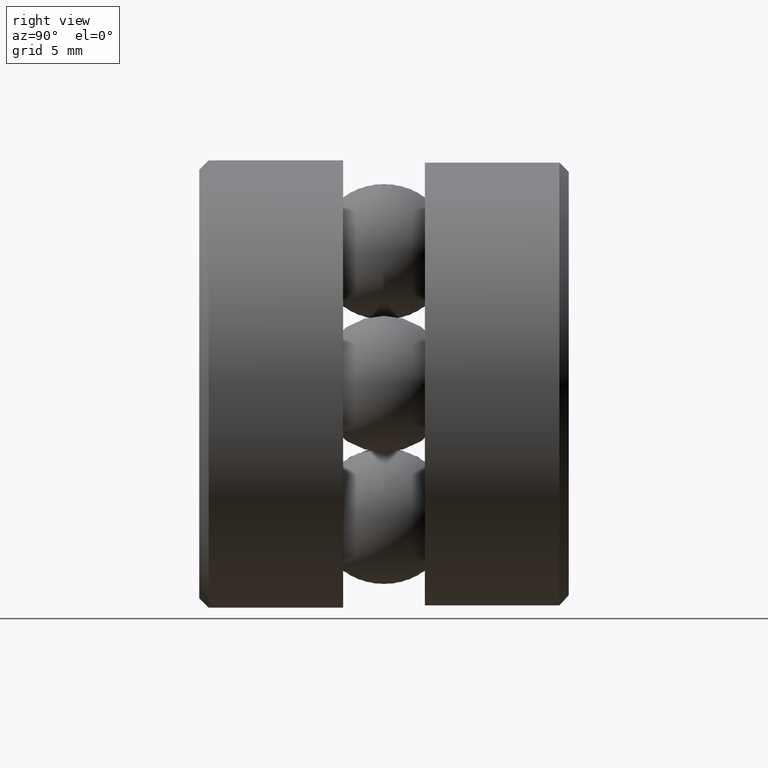
[diagram: clean part render]
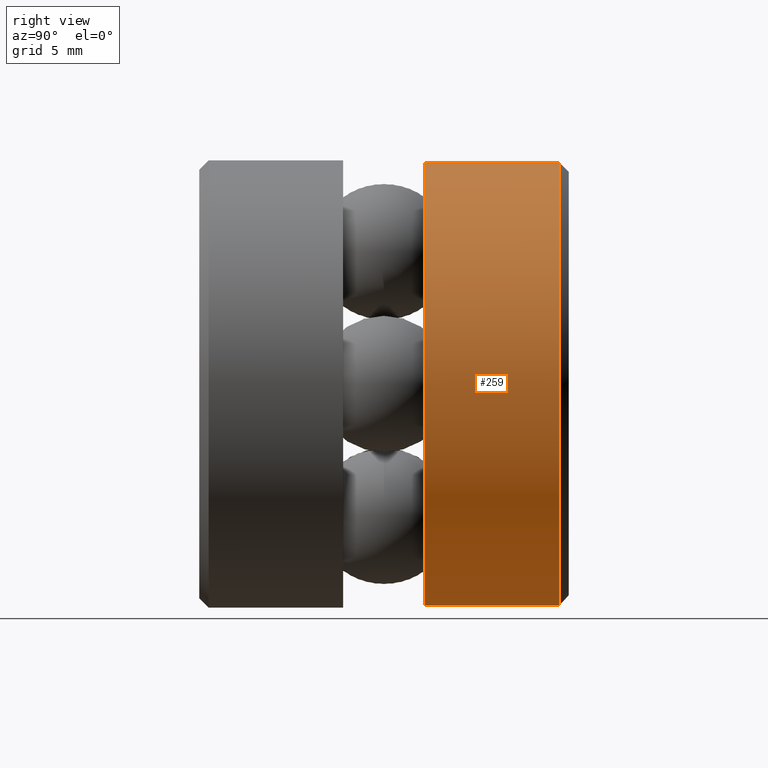
[diagram: same view with one face highlighted and labeled with its STEP entity id]
A machine part, right view. The second image highlights one B-rep face of the part: STEP entity #259.
In plain terms, the highlighted cylindrical surface (bore or boss wall) has radius 18.0785 mm, axis along (-0, 1, -0).
Its self-contained STEP definition (entity closure, byte-faithful):
#13 = AXIS2_PLACEMENT_3D ( 'NONE', #412, #126, #59 ) ;
#28 = EDGE_LOOP ( 'NONE', ( #402 ) ) ;
#59 = DIRECTION ( 'NONE',  ( 0.0000000000000000000, 0.0000000000000000000, 1.000000000000000000 ) ) ;
#76 = CARTESIAN_POINT ( 'NONE',  ( 0.0000000000000000000, 1.157499999999999500, 0.0000000000000000000 ) ) ;
#82 = AXIS2_PLACEMENT_3D ( 'NONE', #204, #160, #282 ) ;
#84 = EDGE_CURVE ( 'NONE', #367, #367, #162, .T. ) ;
#97 = CYLINDRICAL_SURFACE ( 'NONE', #82, 0.7117499999999999900 ) ;
#102 = DIRECTION ( 'NONE',  ( -0.0000000000000000000, 1.000000000000000000, -0.0000000000000000000 ) ) ;
#126 = DIRECTION ( 'NONE',  ( -0.0000000000000000000, 1.000000000000000000, -0.0000000000000000000 ) ) ;
#160 = DIRECTION ( 'NONE',  ( -0.0000000000000000000, 1.000000000000000000, -0.0000000000000000000 ) ) ;
#162 = CIRCLE ( 'NONE', #13, 0.7117499999999999900 ) ;
#181 = AXIS2_PLACEMENT_3D ( 'NONE', #76, #102, #271 ) ;
#204 = CARTESIAN_POINT ( 'NONE',  ( 0.0000000000000000000, 0.0000000000000000000, 0.0000000000000000000 ) ) ;
#259 = ADVANCED_FACE ( 'NONE', ( #425, #393 ), #97, .T. ) ;
#261 = ORIENTED_EDGE ( 'NONE', *, *, #315, .F. ) ;
#271 = DIRECTION ( 'NONE',  ( 0.0000000000000000000, 0.0000000000000000000, 1.000000000000000000 ) ) ;
#282 = DIRECTION ( 'NONE',  ( 0.0000000000000000000, 0.0000000000000000000, 1.000000000000000000 ) ) ;
#307 = EDGE_LOOP ( 'NONE', ( #261 ) ) ;
#315 = EDGE_CURVE ( 'NONE', #336, #336, #366, .T. ) ;
#336 = VERTEX_POINT ( 'NONE', #361 ) ;
#361 = CARTESIAN_POINT ( 'NONE',  ( 0.0000000000000000000, 1.157499999999999500, 0.7117499999999999900 ) ) ;
#366 = CIRCLE ( 'NONE', #181, 0.7117499999999999900 ) ;
#367 = VERTEX_POINT ( 'NONE', #493 ) ;
#393 = FACE_OUTER_BOUND ( 'NONE', #307, .T. ) ;
#402 = ORIENTED_EDGE ( 'NONE', *, *, #84, .T. ) ;
#412 = CARTESIAN_POINT ( 'NONE',  ( 0.0000000000000000000, 0.7251500000000000700, 0.0000000000000000000 ) ) ;
#425 = FACE_OUTER_BOUND ( 'NONE', #28, .T. ) ;
#493 = CARTESIAN_POINT ( 'NONE',  ( 0.0000000000000000000, 0.7251500000000000700, 0.7117499999999999900 ) ) ;